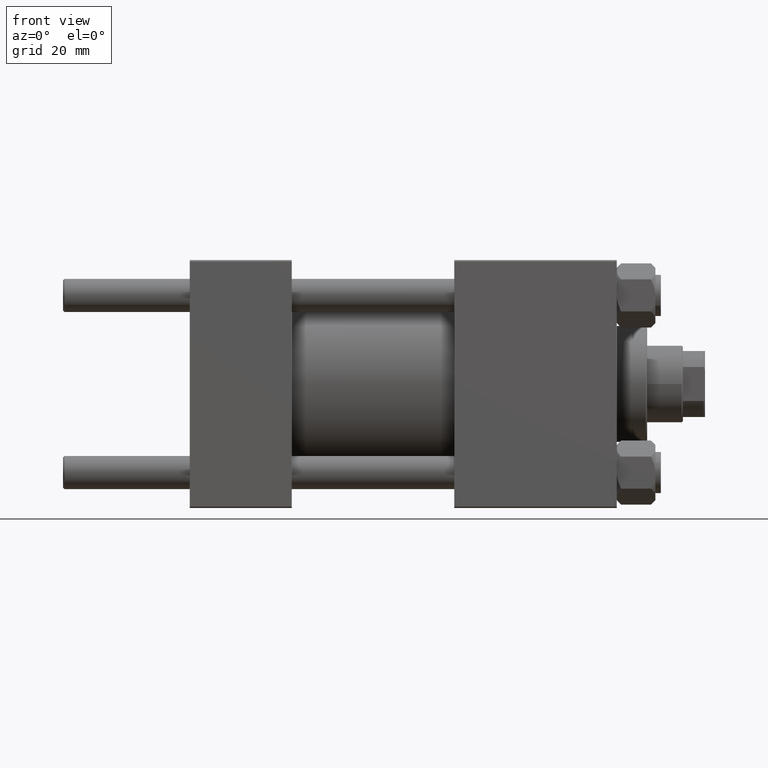
[diagram: clean part render]
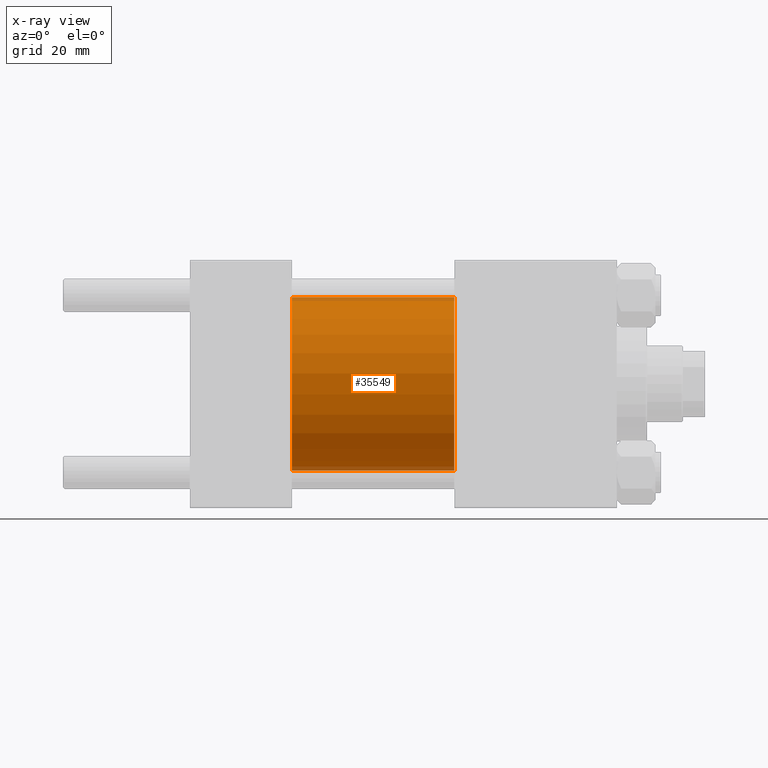
[diagram: x-ray — body ghosted, one internal face saturated and labeled with its STEP entity id]
A machine part, front view, then the same camera in x-ray: the body is ghosted and one INTERNAL B-rep face — a face not visible from any outside direction — is saturated and labeled: STEP entity #35549.
In plain terms, the highlighted cylindrical surface (partial cylindrical patch) has radius 31.5 mm, axis along (-1, -0, -0).
Its self-contained STEP definition (entity closure, byte-faithful):
#696 = CARTESIAN_POINT ( 'NONE',  ( 96.00000000000000000, 0.000000000000000000, 0.000000000000000000 ) ) ;
#1925 = CARTESIAN_POINT ( 'NONE',  ( 37.00000000000000000, 0.000000000000000000, 31.50000000000000000 ) ) ;
#5921 = VECTOR ( 'NONE', #26994, 1000.000000000000000 ) ;
#6560 = VECTOR ( 'NONE', #22899, 1000.000000000000000 ) ;
#7589 = LINE ( 'NONE', #46378, #5921 ) ;
#7604 = EDGE_CURVE ( 'NONE', #32803, #13078, #14579, .T. ) ;
#7779 = ORIENTED_EDGE ( 'NONE', *, *, #7604, .T. ) ;
#8133 = AXIS2_PLACEMENT_3D ( 'NONE', #43448, #13963, #40414 ) ;
#8309 = CARTESIAN_POINT ( 'NONE',  ( 37.00000000000000000, 3.857637417314162689E-15, -31.50000000000000000 ) ) ;
#8364 = ORIENTED_EDGE ( 'NONE', *, *, #47112, .F. ) ;
#8492 = FACE_OUTER_BOUND ( 'NONE', #38165, .T. ) ;
#13078 = VERTEX_POINT ( 'NONE', #48243 ) ;
#13766 = VERTEX_POINT ( 'NONE', #1925 ) ;
#13963 = DIRECTION ( 'NONE',  ( 1.000000000000000000, 0.000000000000000000, 0.000000000000000000 ) ) ;
#14579 = CIRCLE ( 'NONE', #8133, 31.50000000000000000 ) ;
#16300 = CYLINDRICAL_SURFACE ( 'NONE', #19325, 31.50000000000000000 ) ;
#17637 = ORIENTED_EDGE ( 'NONE', *, *, #48705, .F. ) ;
#19325 = AXIS2_PLACEMENT_3D ( 'NONE', #696, #19846, #23126 ) ;
#19846 = DIRECTION ( 'NONE',  ( -1.000000000000000000, -0.000000000000000000, -0.000000000000000000 ) ) ;
#22156 = LINE ( 'NONE', #41791, #6560 ) ;
#22899 = DIRECTION ( 'NONE',  ( -1.000000000000000000, -0.000000000000000000, -0.000000000000000000 ) ) ;
#23126 = DIRECTION ( 'NONE',  ( 0.000000000000000000, 0.000000000000000000, 1.000000000000000000 ) ) ;
#23852 = DIRECTION ( 'NONE',  ( 1.000000000000000000, 0.000000000000000000, 0.000000000000000000 ) ) ;
#26994 = DIRECTION ( 'NONE',  ( -1.000000000000000000, -0.000000000000000000, -0.000000000000000000 ) ) ;
#28113 = CARTESIAN_POINT ( 'NONE',  ( 37.00000000000000000, 0.000000000000000000, 0.000000000000000000 ) ) ;
#32128 = VERTEX_POINT ( 'NONE', #8309 ) ;
#32803 = VERTEX_POINT ( 'NONE', #43923 ) ;
#34142 = CIRCLE ( 'NONE', #42177, 31.50000000000000000 ) ;
#35549 = ADVANCED_FACE ( 'NONE', ( #8492 ), #16300, .F. ) ;
#38165 = EDGE_LOOP ( 'NONE', ( #7779, #43682, #17637, #8364 ) ) ;
#39570 = EDGE_CURVE ( 'NONE', #13078, #32128, #22156, .T. ) ;
#39692 = DIRECTION ( 'NONE',  ( 0.000000000000000000, 0.000000000000000000, -1.000000000000000000 ) ) ;
#40414 = DIRECTION ( 'NONE',  ( 0.000000000000000000, 0.000000000000000000, -1.000000000000000000 ) ) ;
#41791 = CARTESIAN_POINT ( 'NONE',  ( 96.00000000000000000, 3.857637417314162689E-15, -31.50000000000000000 ) ) ;
#42177 = AXIS2_PLACEMENT_3D ( 'NONE', #28113, #23852, #39692 ) ;
#43448 = CARTESIAN_POINT ( 'NONE',  ( 96.00000000000000000, 0.000000000000000000, 0.000000000000000000 ) ) ;
#43682 = ORIENTED_EDGE ( 'NONE', *, *, #39570, .T. ) ;
#43923 = CARTESIAN_POINT ( 'NONE',  ( 96.00000000000000000, 0.000000000000000000, 31.50000000000000000 ) ) ;
#46378 = CARTESIAN_POINT ( 'NONE',  ( 96.00000000000000000, 0.000000000000000000, 31.50000000000000000 ) ) ;
#47112 = EDGE_CURVE ( 'NONE', #32803, #13766, #7589, .T. ) ;
#48243 = CARTESIAN_POINT ( 'NONE',  ( 96.00000000000000000, 3.857637417314162689E-15, -31.50000000000000000 ) ) ;
#48705 = EDGE_CURVE ( 'NONE', #13766, #32128, #34142, .T. ) ;